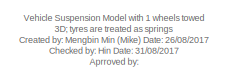
[diagram: root canvas - part 1/6, top center region]
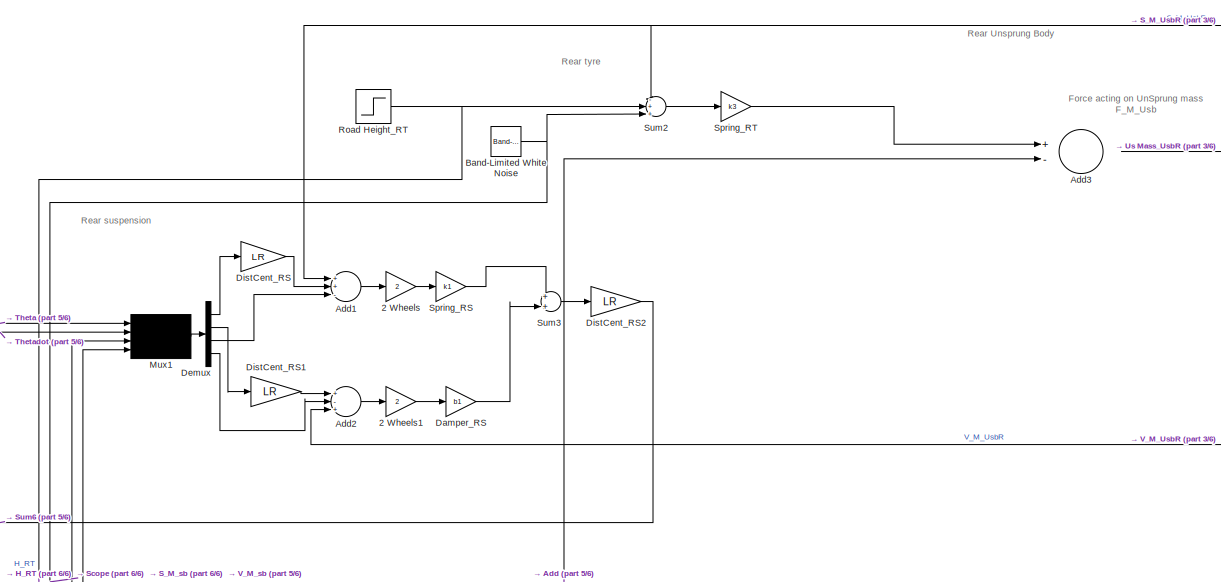
[diagram: root canvas - part 2/6, middle right region]
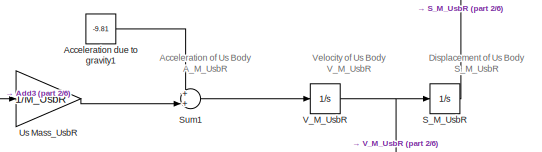
[diagram: root canvas - part 3/6, top right region]
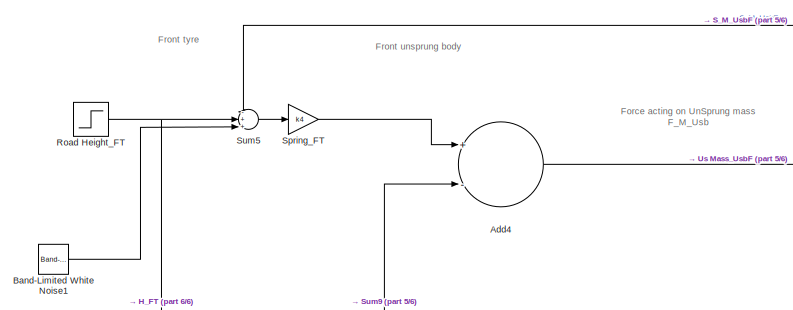
[diagram: root canvas - part 4/6, top left region]
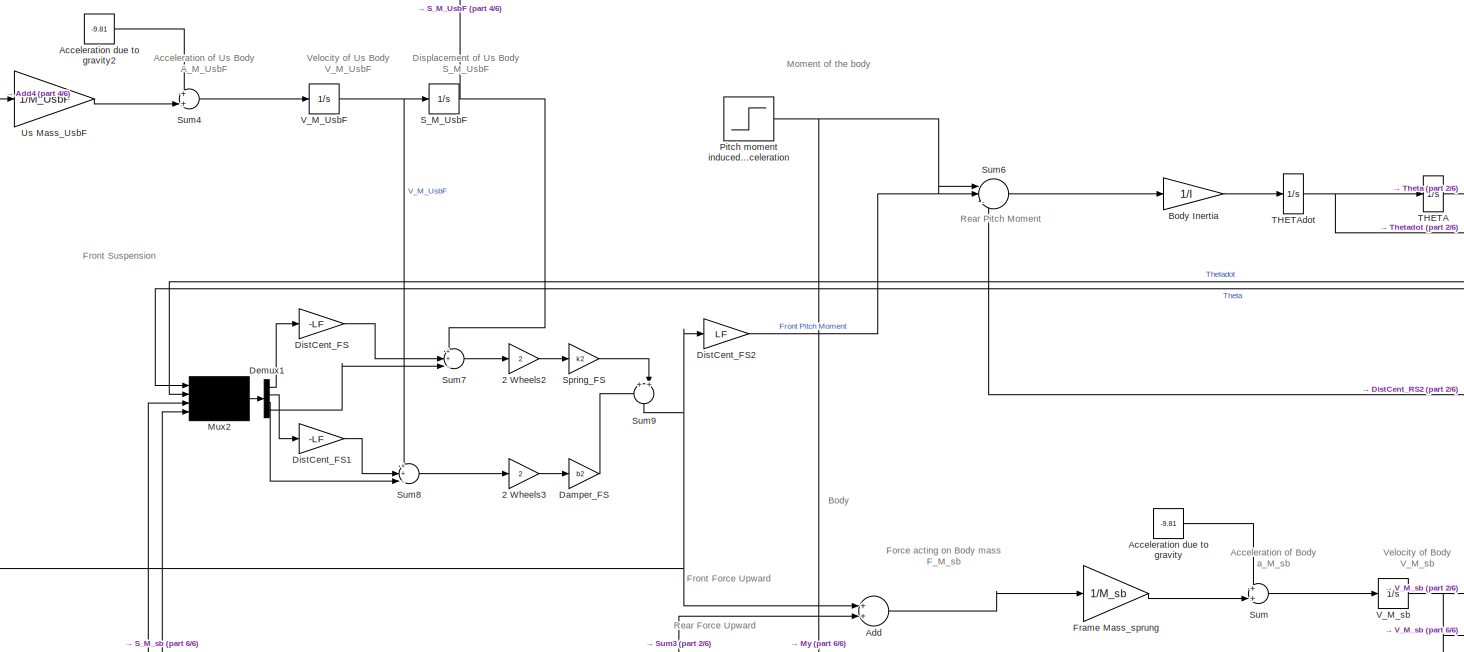
[diagram: root canvas - part 5/6, central region]
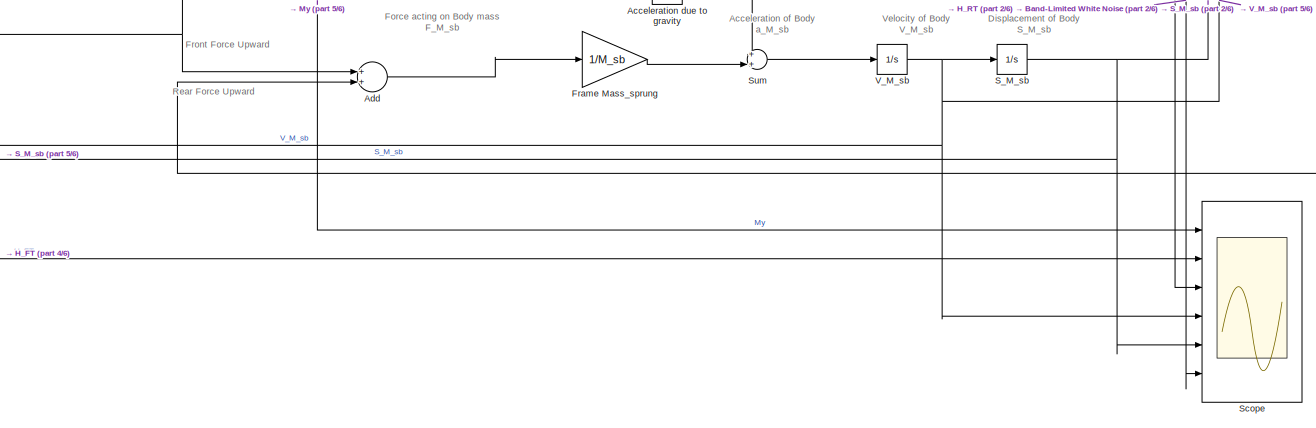
[diagram: root canvas - part 6/6, bottom center region]
MODEL slx_c2810bf05add
KIND model
CONFIG AbsTol = auto
CONFIG FixedStep = auto
CONFIG MaxStep = auto
CONFIG MinStep = auto
CONFIG RelTol = 1e-3
CONFIG SampleTimeConstraint = Unconstrained
CONFIG Solver = VariableStepAuto
CONFIG SolverMode = Auto
CONFIG SolverName = VariableStepAuto
CONFIG StartTime = 0.0
CONFIG StopTime = 100
BLOCK [Gain] 2 Wheels
  Gain = 2
  OutDataTypeStr = Inherit: Inherit via internal rule
  ParamDataTypeStr = Inherit: Inherit via internal rule
  SaturateOnIntegerOverflow = off
BLOCK [Gain] 2 Wheels1
  Gain = 2
  OutDataTypeStr = Inherit: Inherit via internal rule
  ParamDataTypeStr = Inherit: Inherit via internal rule
  SaturateOnIntegerOverflow = off
BLOCK [Gain] 2 Wheels2
  Gain = 2
  OutDataTypeStr = Inherit: Inherit via internal rule
  ParamDataTypeStr = Inherit: Inherit via internal rule
  SaturateOnIntegerOverflow = off
BLOCK [Gain] 2 Wheels3
  Gain = 2
  OutDataTypeStr = Inherit: Inherit via internal rule
  ParamDataTypeStr = Inherit: Inherit via internal rule
  SaturateOnIntegerOverflow = off
BLOCK [Constant] Acceleration due to gravity
  Value = -9.81
BLOCK [Constant] Acceleration due to gravity1
  Value = -9.81
BLOCK [Constant] Acceleration due to gravity2
  Value = -9.81
BLOCK [Sum] Add
  InputSameDT = off
  OutDataTypeStr = Inherit: Inherit via internal rule
  Ports = [2, 1]
  SaturateOnIntegerOverflow = off
BLOCK [Sum] Add1
  InputSameDT = off
  Inputs = ++-
  OutDataTypeStr = Inherit: Inherit via internal rule
  Ports = [3, 1]
  SaturateOnIntegerOverflow = off
BLOCK [Sum] Add2
  InputSameDT = off
  Inputs = +-+
  OutDataTypeStr = Inherit: Inherit via internal rule
  Ports = [3, 1]
  SaturateOnIntegerOverflow = off
BLOCK [Sum] Add3
  InputSameDT = off
  Inputs = +-
  OutDataTypeStr = Inherit: Inherit via internal rule
  Ports = [2, 1]
  SaturateOnIntegerOverflow = off
BLOCK [Sum] Add4
  InputSameDT = off
  Inputs = +-
  OutDataTypeStr = Inherit: Inherit via internal rule
  Ports = [2, 1]
  SaturateOnIntegerOverflow = off
BLOCK [Reference] Band-Limited White Noise  REF=simulink/Sources/Band-Limited
White Noise
  Ports = [0, 1]
  SourceBlock = simulink/Sources/Band-Limited\nWhite Noise
  SourceType = Band-Limited White Noise.
BLOCK [Reference] Band-Limited White Noise1  REF=simulink/Sources/Band-Limited
White Noise
  Ports = [0, 1]
  SourceBlock = simulink/Sources/Band-Limited\nWhite Noise
  SourceType = Band-Limited White Noise.
BLOCK [Gain] Body Inertia
  Gain = 1/I
BLOCK [Gain] Damper_FS
  Gain = b2
  OutDataTypeStr = Inherit: Inherit via internal rule
  ParamDataTypeStr = Inherit: Inherit via internal rule
  SaturateOnIntegerOverflow = off
BLOCK [Gain] Damper_RS
  Gain = b1
  OutDataTypeStr = Inherit: Inherit via internal rule
  ParamDataTypeStr = Inherit: Inherit via internal rule
  SaturateOnIntegerOverflow = off
BLOCK [Demux] Demux
  DisplayOption = bar
  Ports = [1, 4]
BLOCK [Demux] Demux1
  DisplayOption = bar
  Ports = [1, 4]
BLOCK [Gain] DistCent_FS
  Gain = -LF
  OutDataTypeStr = Inherit: Inherit via internal rule
  ParamDataTypeStr = Inherit: Inherit via internal rule
  SaturateOnIntegerOverflow = off
BLOCK [Gain] DistCent_FS1
  Gain = -LF
  OutDataTypeStr = Inherit: Inherit via internal rule
  ParamDataTypeStr = Inherit: Inherit via internal rule
  SaturateOnIntegerOverflow = off
BLOCK [Gain] DistCent_FS2
  Gain = LF
  OutDataTypeStr = Inherit: Inherit via internal rule
  ParamDataTypeStr = Inherit: Inherit via internal rule
  SaturateOnIntegerOverflow = off
BLOCK [Gain] DistCent_RS
  Gain = LR
  OutDataTypeStr = Inherit: Inherit via internal rule
  ParamDataTypeStr = Inherit: Inherit via internal rule
  SaturateOnIntegerOverflow = off
BLOCK [Gain] DistCent_RS1
  Gain = LR
  OutDataTypeStr = Inherit: Inherit via internal rule
  ParamDataTypeStr = Inherit: Inherit via internal rule
  SaturateOnIntegerOverflow = off
BLOCK [Gain] DistCent_RS2
  Gain = LR
  OutDataTypeStr = Inherit: Inherit via internal rule
  ParamDataTypeStr = Inherit: Inherit via internal rule
  SaturateOnIntegerOverflow = off
BLOCK [Gain] Frame Mass_sprung
  Gain = 1/M_sb
  OutDataTypeStr = Inherit: Inherit via internal rule
  ParamDataTypeStr = Inherit: Inherit via internal rule
  SaturateOnIntegerOverflow = off
BLOCK [Mux] Mux1
  DisplayOption = signals
  Ports = [4, 1]
BLOCK [Mux] Mux2
  DisplayOption = signals
  Ports = [4, 1]
BLOCK [Step] Pitch moment induced by vehicle acceleration
  After = 100
  SampleTime = 0
BLOCK [Step] Road Height_FT
  After = 0
  SampleTime = 0
  Time = 2
BLOCK [Step] Road Height_RT
  After = 0
  SampleTime = 0
  Time = 4
BLOCK [Integrator] S_M_UsbF
  Ports = [1, 1]
BLOCK [Integrator] S_M_UsbR
  Ports = [1, 1]
BLOCK [Integrator] S_M_sb
  Ports = [1, 1]
BLOCK [Scope] Scope
  NumInputPorts = 6
  Ports = [6]
  ScopeSpecificationString = Simulink.scopes.TimeScopeBlockCfg('CurrentConfiguration', extmgr.ConfigurationSet(extmgr.Configuration('Core','General UI',true),extmgr.Configuration('Core','Source UI',true),extmgr.Configuration('Sources','WiredSimulink',true),extmgr.Configuration('Visuals','Time Domain',true,'SerializedDisplays',{struct('MinYLimReal','-12.5','MaxYLimReal','112.5','YLabelReal','','MinYLimMag','0.00000','MaxYLimMa...<+4767ch>
BLOCK [Gain] Spring_FS
  Gain = k2
  OutDataTypeStr = Inherit: Inherit via internal rule
  ParamDataTypeStr = Inherit: Inherit via internal rule
  SaturateOnIntegerOverflow = off
BLOCK [Gain] Spring_FT
  Gain = k4
  OutDataTypeStr = Inherit: Inherit via internal rule
  ParamDataTypeStr = Inherit: Inherit via internal rule
  SaturateOnIntegerOverflow = off
BLOCK [Gain] Spring_RS 
  Gain = k1
  OutDataTypeStr = Inherit: Inherit via internal rule
  ParamDataTypeStr = Inherit: Inherit via internal rule
  SaturateOnIntegerOverflow = off
BLOCK [Gain] Spring_RT
  Gain = k3
  OutDataTypeStr = Inherit: Inherit via internal rule
  ParamDataTypeStr = Inherit: Inherit via internal rule
  SaturateOnIntegerOverflow = off
BLOCK [Sum] Sum
  IconShape = round
  InputSameDT = off
  Inputs = ++|
  OutDataTypeStr = Inherit: Inherit via internal rule
  Ports = [2, 1]
  SaturateOnIntegerOverflow = off
BLOCK [Sum] Sum1
  IconShape = round
  InputSameDT = off
  Inputs = ++|
  OutDataTypeStr = Inherit: Inherit via internal rule
  Ports = [2, 1]
  SaturateOnIntegerOverflow = off
BLOCK [Sum] Sum2
  IconShape = round
  InputSameDT = off
  Inputs = -++|
  OutDataTypeStr = Inherit: Inherit via internal rule
  Ports = [3, 1]
  SaturateOnIntegerOverflow = off
BLOCK [Sum] Sum3
  IconShape = round
  InputSameDT = off
  Inputs = ++|
  OutDataTypeStr = Inherit: Inherit via internal rule
  Ports = [2, 1]
  SaturateOnIntegerOverflow = off
BLOCK [Sum] Sum4
  IconShape = round
  InputSameDT = off
  Inputs = ++|
  OutDataTypeStr = Inherit: Inherit via internal rule
  Ports = [2, 1]
  SaturateOnIntegerOverflow = off
BLOCK [Sum] Sum5
  IconShape = round
  InputSameDT = off
  Inputs = -++|
  OutDataTypeStr = Inherit: Inherit via internal rule
  Ports = [3, 1]
  SaturateOnIntegerOverflow = off
BLOCK [Sum] Sum6
  IconShape = round
  Inputs = ||-+-
  Ports = [3, 1]
BLOCK [Sum] Sum7
  IconShape = round
  InputSameDT = off
  Inputs = ++-|
  OutDataTypeStr = Inherit: Inherit via internal rule
  Ports = [3, 1]
  SaturateOnIntegerOverflow = off
BLOCK [Sum] Sum8
  IconShape = round
  InputSameDT = off
  Inputs = ++-|
  OutDataTypeStr = Inherit: Inherit via internal rule
  Ports = [3, 1]
  SaturateOnIntegerOverflow = off
BLOCK [Sum] Sum9
  IconShape = round
  InputSameDT = off
  Inputs = ++|
  OutDataTypeStr = Inherit: Inherit via internal rule
  Ports = [2, 1]
  SaturateOnIntegerOverflow = off
BLOCK [Integrator] THETA
  InitialCondition = -8.7e-20
  Ports = [1, 1]
BLOCK [Integrator] THETAdot
  InitialCondition = 8.04e-28
  Ports = [1, 1]
BLOCK [Gain] Us Mass_UsbF
  Gain = 1/M_UsbF
  OutDataTypeStr = Inherit: Inherit via internal rule
  ParamDataTypeStr = Inherit: Inherit via internal rule
  SaturateOnIntegerOverflow = off
BLOCK [Gain] Us Mass_UsbR
  Gain = 1/M_UsbR
  OutDataTypeStr = Inherit: Inherit via internal rule
  ParamDataTypeStr = Inherit: Inherit via internal rule
  SaturateOnIntegerOverflow = off
BLOCK [Integrator] V_M_UsbF
  Ports = [1, 1]
BLOCK [Integrator] V_M_UsbR
  Ports = [1, 1]
BLOCK [Integrator] V_M_sb
  Ports = [1, 1]
ANNOTATION (root): Vehicle Suspension Model with 1 wheels towed 3D; tyres are treated as springs Created by: Mengbin Min (Mike) Date: 26/08/2017 Checked by: Hin Date: 31/08/2017 Aprroved by:
ANNOTATION (root): Acceleration of Body a_M_sb
ANNOTATION (root): Acceleration of Us Body A_M_UsbF
ANNOTATION (root): Acceleration of Us Body A_M_UsbR
ANNOTATION (root): Body
ANNOTATION (root): Displacement of Body S_M_sb
ANNOTATION (root): Displacement of Us Body S_M_UsbF
ANNOTATION (root): Displacement of Us Body S_M_UsbR
ANNOTATION (root): Force acting on Body mass F_M_sb
ANNOTATION (root): Force acting on UnSprung mass F_M_Usb
ANNOTATION (root): Front Force Upward
ANNOTATION (root): Front Suspension
ANNOTATION (root): Front tyre
ANNOTATION (root): Front unsprung body
ANNOTATION (root): Moment of the body
ANNOTATION (root): Rear Force Upward
ANNOTATION (root): Rear Pitch Moment
ANNOTATION (root): Rear Unsprung Body
ANNOTATION (root): Rear suspension
ANNOTATION (root): Rear tyre
ANNOTATION (root): Velocity of Body V_M_sb
ANNOTATION (root): Velocity of Us Body V_M_UsbF
ANNOTATION (root): Velocity of Us Body V_M_UsbR
LINE 2 Wheels1:1 -> Damper_RS:1
LINE 2 Wheels2:1 -> Spring_FS:1
LINE 2 Wheels3:1 -> Damper_FS:1
LINE 2 Wheels:1 -> Spring_RS :1
LINE Acceleration due to gravity1:1 -> Sum1:1
LINE Acceleration due to gravity2:1 -> Sum4:1
LINE Acceleration due to gravity:1 -> Sum:1
LINE Add1:1 -> 2 Wheels:1
LINE Add2:1 -> 2 Wheels1:1
LINE Add3:1 -> Us Mass_UsbR:1
LINE Add4:1 -> Us Mass_UsbF:1
LINE Add:1 -> Frame Mass_sprung:1
LINE Band-Limited White Noise1:1 -> Sum5:3
NET Band-Limited White Noise:1 -> Scope:6, Sum2:3
LINE Body Inertia:1 -> THETAdot:1
LINE Damper_FS:1 -> Sum9:1
LINE Damper_RS:1 -> Sum3:2
LINE Demux1:1 -> DistCent_FS:1
LINE Demux1:2 -> DistCent_FS1:1
LINE Demux1:3 -> Sum8:3
LINE Demux1:4 -> Sum7:3
LINE Demux:1 -> DistCent_RS:1
LINE Demux:2 -> DistCent_RS1:1
LINE Demux:3 -> Add1:3
LINE Demux:4 -> Add2:2
LINE DistCent_FS1:1 -> Sum8:2
LINE DistCent_FS2:1 -> Sum6:2
LINE DistCent_FS:1 -> Sum7:2
LINE DistCent_RS1:1 -> Add2:1
LINE DistCent_RS2:1 -> Sum6:3
LINE DistCent_RS:1 -> Add1:2
LINE Frame Mass_sprung:1 -> Sum:2
LINE Mux1:1 -> Demux:1
LINE Mux2:1 -> Demux1:1
NET Pitch moment induced by vehicle acceleration:1 -> Scope:1, Sum6:1
NET Road Height_FT:1 -> Scope:2, Sum5:2
NET Road Height_RT:1 -> Scope:3, Sum2:2
NET S_M_UsbF:1 -> Sum5:1, Sum7:1
NET S_M_UsbR:1 -> Add1:1, Sum2:1
NET S_M_sb:1 -> Mux1:3, Mux2:4, Scope:5
LINE Spring_FS:1 -> Sum9:2
LINE Spring_FT:1 -> Add4:1
LINE Spring_RS :1 -> Sum3:1
LINE Spring_RT:1 -> Add3:1
LINE Sum1:1 -> V_M_UsbR:1
LINE Sum2:1 -> Spring_RT:1
NET Sum3:1 -> Add3:2, Add:2, DistCent_RS2:1
LINE Sum4:1 -> V_M_UsbF:1
LINE Sum5:1 -> Spring_FT:1
LINE Sum6:1 -> Body Inertia:1
LINE Sum7:1 -> 2 Wheels2:1
LINE Sum8:1 -> 2 Wheels3:1
NET Sum9:1 -> Add4:2, Add:1, DistCent_FS2:1
LINE Sum:1 -> V_M_sb:1
NET THETA:1 -> Mux1:1, Mux2:1
NET THETAdot:1 -> Mux1:2, Mux2:2, THETA:1
LINE Us Mass_UsbF:1 -> Sum4:2
LINE Us Mass_UsbR:1 -> Sum1:2
NET V_M_UsbF:1 -> S_M_UsbF:1, Sum8:1
NET V_M_UsbR:1 -> Add2:3, S_M_UsbR:1
NET V_M_sb:1 -> Mux1:4, Mux2:3, S_M_sb:1, Scope:4
note: NET lines group one-source signal fan-out (src -> all destinations, sorted); 1:1 wires keep LINE
